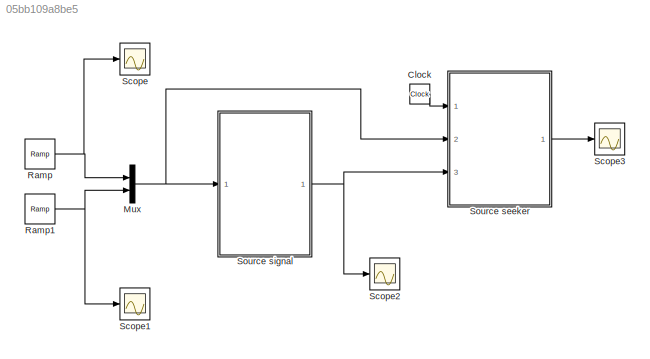
MODEL slx_05bb109a8be5
KIND model
CONFIG AbsTol = auto
CONFIG EnableMultiTasking = off
CONFIG FixedStep = auto
CONFIG MaxStep = auto
CONFIG MinStep = auto
CONFIG RelTol = 1e-3
CONFIG SampleTimeConstraint = Unconstrained
CONFIG Solver = VariableStepAuto
CONFIG SolverName = VariableStepAuto
CONFIG StartTime = 0.0
CONFIG StopTime = 10
BLOCK [Clock] Clock
BLOCK [Mux] Mux
  DisplayOption = bar
  Inputs = 2
  Ports = [2, 1]
BLOCK [Reference] Ramp  REF=simulink/Sources/Ramp
  Ports = [0, 1]
  SourceBlock = simulink/Sources/Ramp
  SourceProductBaseCode = SL
  SourceProductName = Simulink
  SourceType = Ramp
BLOCK [Reference] Ramp1  REF=simulink/Sources/Ramp
  Ports = [0, 1]
  SourceBlock = simulink/Sources/Ramp
  SourceProductBaseCode = SL
  SourceProductName = Simulink
  SourceType = Ramp
BLOCK [Scope] Scope
  NumInputPorts = 1
  Ports = [1]
  ScopeSpecificationString = Simulink.scopes.TimeScopeBlockCfg('CurrentConfiguration', extmgr.ConfigurationSet(extmgr.Configuration('Core','General UI',true),extmgr.Configuration('Core','Source UI',true),extmgr.Configuration('Sources','WiredSimulink',true,'DataLoggingVariableName','ScopeData2'),extmgr.Configuration('Visuals','Time Domain',true,'SerializedDisplays',{struct('MinYLimReal','-10.25','MaxYLimReal','2.25','YLabelRea...<+1378ch>
BLOCK [Scope] Scope1
  NumInputPorts = 1
  Ports = [1]
  ScopeSpecificationString = Simulink.scopes.TimeScopeBlockCfg('CurrentConfiguration', extmgr.ConfigurationSet(extmgr.Configuration('Core','General UI',true),extmgr.Configuration('Core','Source UI',true),extmgr.Configuration('Sources','WiredSimulink',true,'DataLoggingVariableName','ScopeData3'),extmgr.Configuration('Visuals','Time Domain',true),extmgr.Configuration('Tools','Plot Navigation',true),extmgr.Configuration('Tools',...<+40ch>
BLOCK [Scope] Scope2
  NumInputPorts = 1
  Ports = [1]
  ScopeSpecificationString = Simulink.scopes.TimeScopeBlockCfg('CurrentConfiguration', extmgr.ConfigurationSet(extmgr.Configuration('Core','General UI',true),extmgr.Configuration('Core','Source UI',true),extmgr.Configuration('Sources','WiredSimulink',true,'DataLoggingVariableName','ScopeData5'),extmgr.Configuration('Visuals','Time Domain',true,'SerializedDisplays',{struct('MinYLimReal','-20.25','MaxYLimReal','182.25','YLabelR...<+1393ch>
BLOCK [Scope] Scope3
  NumInputPorts = 1
  Ports = [1]
  ScopeSpecificationString = Simulink.scopes.TimeScopeBlockCfg('CurrentConfiguration', extmgr.ConfigurationSet(extmgr.Configuration('Core','General UI',true),extmgr.Configuration('Core','Source UI',true),extmgr.Configuration('Sources','WiredSimulink',true,'DataLoggingVariableName','ScopeData6'),extmgr.Configuration('Visuals','Time Domain',true,'SerializedDisplays',{struct('MinYLimReal','-1.42455','MaxYLimReal','3.14548','YLab...<+1421ch>
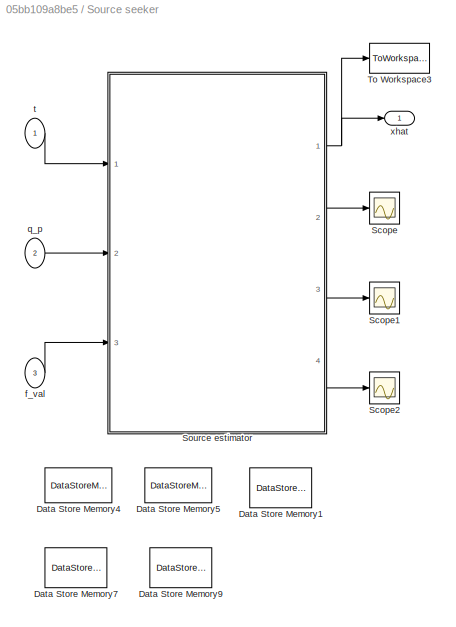
BLOCK [SubSystem] Source seeker
  Ports = [3, 1]
  RequestExecContextInheritance = off
  Variant = off
BLOCK [DataStoreMemory] Source seeker/Data Store Memory1
  DataStoreName = t_0s
  OutDataTypeStr = double
  ReadBeforeWriteMsg = warning
  ShowAdditionalParam = off
  SignalType = real
  WriteAfterReadMsg = warning
  WriteAfterWriteMsg = warning
BLOCK [DataStoreMemory] Source seeker/Data Store Memory4
  DataStoreName = xhat_interval
  Dimensions = [2, 1]
  InitialValue = xhat0
  OutDataTypeStr = double
  ReadBeforeWriteMsg = warning
  ShowAdditionalParam = off
  SignalType = real
  WriteAfterReadMsg = warning
  WriteAfterWriteMsg = warning
BLOCK [DataStoreMemory] Source seeker/Data Store Memory5
  DataStoreName = m_interval
  OutDataTypeStr = double
  ReadBeforeWriteMsg = warning
  ShowAdditionalParam = off
  SignalType = real
  WriteAfterReadMsg = warning
  WriteAfterWriteMsg = warning
BLOCK [DataStoreMemory] Source seeker/Data Store Memory7
  DataStoreName = xhat_prev
  InitialValue = xhat0
  OutDataTypeStr = double
  ReadBeforeWriteMsg = warning
  ShowAdditionalParam = off
  SignalType = real
  WriteAfterReadMsg = warning
  WriteAfterWriteMsg = warning
BLOCK [DataStoreMemory] Source seeker/Data Store Memory9
  DataStoreName = t_0c
  OutDataTypeStr = double
  ReadBeforeWriteMsg = warning
  ShowAdditionalParam = off
  SignalType = real
  WriteAfterReadMsg = warning
  WriteAfterWriteMsg = warning
BLOCK [Scope] Source seeker/Scope
  NumInputPorts = 1
  Ports = [1]
  ScopeSpecificationString = Simulink.scopes.TimeScopeBlockCfg('CurrentConfiguration', extmgr.ConfigurationSet(extmgr.Configuration('Core','General UI',true),extmgr.Configuration('Core','Source UI',true),extmgr.Configuration('Sources','WiredSimulink',true),extmgr.Configuration('Visuals','Time Domain',true,'SerializedDisplays',{struct('MinYLimReal','0.06091','MaxYLimReal','2.98042','YLabelReal','','MinYLimMag','0.06091','MaxYL...<+1416ch>
BLOCK [Scope] Source seeker/Scope1
  NumInputPorts = 1
  Ports = [1]
  ScopeSpecificationString = Simulink.scopes.TimeScopeBlockCfg('CurrentConfiguration', extmgr.ConfigurationSet(extmgr.Configuration('Core','General UI',true),extmgr.Configuration('Core','Source UI',true),extmgr.Configuration('Sources','WiredSimulink',true,'DataLoggingVariableName','ScopeData1'),extmgr.Configuration('Visuals','Time Domain',true,'SerializedDisplays',{struct('MinYLimReal','-0.25','MaxYLimReal','2.25','YLabelReal...<+1394ch>
BLOCK [Scope] Source seeker/Scope2
  NumInputPorts = 1
  Ports = [1]
  ScopeSpecificationString = Simulink.scopes.TimeScopeBlockCfg('CurrentConfiguration', extmgr.ConfigurationSet(extmgr.Configuration('Core','General UI',true),extmgr.Configuration('Core','Source UI',true),extmgr.Configuration('Sources','WiredSimulink',true,'DataLoggingVariableName','ScopeData4'),extmgr.Configuration('Visuals','Time Domain',true,'SerializedDisplays',{struct('MinYLimReal','-0.71539','MaxYLimReal','6.43849','YLab...<+1416ch>
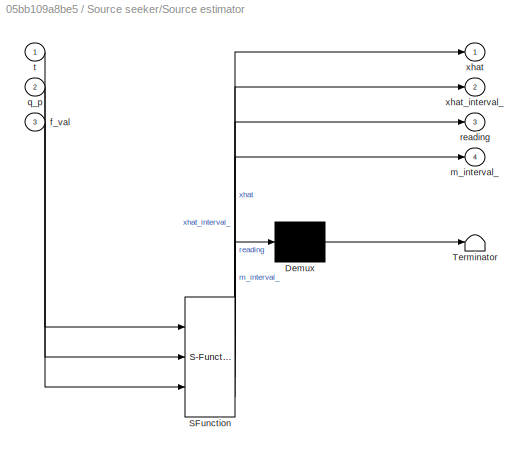
BLOCK [SubSystem] Source seeker/Source estimator
  ErrorFcn = Stateflow.Translate.translate
  PermitHierarchicalResolution = ExplicitOnly
  Ports = [3, 4]
  RequestExecContextInheritance = off
  SFBlockType = MATLAB Function
  TreatAsAtomicUnit = on
  Variant = off
BLOCK [Demux] Source seeker/Source estimator/ Demux 
  Outputs = 1
  Ports = [1, 1]
BLOCK [S-Function] Source seeker/Source estimator/ SFunction 
  EnableBusSupport = on
  FunctionName = sf_sfun
  Parameters = source_params
  PortCounts = [3 5]
  Ports = [3, 5]
  SFcnIsStateOwnerBlock = off
  SFunctionDeploymentMode = off
  Tag = Stateflow S-Function save_sourcegen 3
BLOCK [Terminator] Source seeker/Source estimator/ Terminator 
BLOCK [Inport] Source seeker/Source estimator/f_val
  IconDisplay = Port number
  Port = 3
BLOCK [Outport] Source seeker/Source estimator/m_interval_
  IconDisplay = Port number
  Port = 4
BLOCK [Inport] Source seeker/Source estimator/q_p
  IconDisplay = Port number
  Port = 2
BLOCK [Outport] Source seeker/Source estimator/reading
  IconDisplay = Port number
  Port = 3
BLOCK [Inport] Source seeker/Source estimator/t
  IconDisplay = Port number
BLOCK [Outport] Source seeker/Source estimator/xhat
  IconDisplay = Port number
BLOCK [Outport] Source seeker/Source estimator/xhat_interval_
  IconDisplay = Port number
  Port = 2
BLOCK [ToWorkspace] Source seeker/To Workspace3
  FixptAsFi = on
  MaxDataPoints = inf
  Ports = [1]
  SampleTime = -1
  Save2DSignal = 3-D array (concatenate along third dimension)
  SaveFormat = Structure With Time
  VariableName = xhat
BLOCK [Inport] Source seeker/f_val
  IconDisplay = Port number
  Port = 3
BLOCK [Inport] Source seeker/q_p
  IconDisplay = Port number
  Port = 2
BLOCK [Inport] Source seeker/t
  IconDisplay = Port number
BLOCK [Outport] Source seeker/xhat
  IconDisplay = Port number
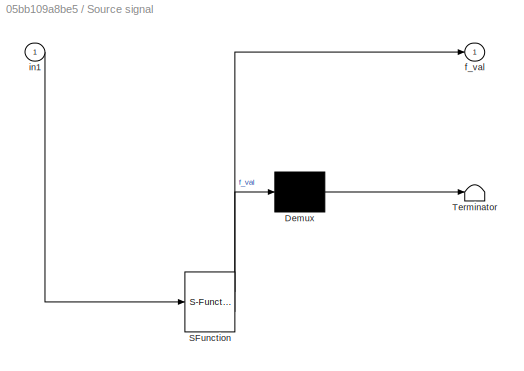
BLOCK [SubSystem] Source signal
  ErrorFcn = Stateflow.Translate.translate
  PermitHierarchicalResolution = ExplicitOnly
  Ports = [1, 1]
  RequestExecContextInheritance = off
  SFBlockType = MATLAB Function
  TreatAsAtomicUnit = on
  Variant = off
BLOCK [Demux] Source signal/ Demux 
  Outputs = 1
  Ports = [1, 1]
BLOCK [S-Function] Source signal/ SFunction 
  EnableBusSupport = on
  FunctionName = sf_sfun
  PortCounts = [1 2]
  Ports = [1, 2]
  SFcnIsStateOwnerBlock = off
  SFunctionDeploymentMode = off
  Tag = Stateflow S-Function save_sourcegen 7
BLOCK [Terminator] Source signal/ Terminator 
BLOCK [Outport] Source signal/f_val
  IconDisplay = Port number
BLOCK [Inport] Source signal/in1
  IconDisplay = Port number
LINE Clock:1 -> Source seeker:1
NET Mux:1 -> Source seeker:2, Source signal:1
NET Ramp1:1 -> Mux:2, Scope1:1
NET Ramp:1 -> Mux:1, Scope:1
NET Source seeker/Source estimator:1 -> Source seeker/To Workspace3:1, Source seeker/xhat:1
LINE Source seeker/Source estimator:2 -> Source seeker/Scope:1
LINE Source seeker/Source estimator:3 -> Source seeker/Scope1:1
LINE Source seeker/Source estimator:4 -> Source seeker/Scope2:1
LINE Source seeker/f_val:1 -> Source seeker/Source estimator:3
LINE Source seeker/q_p:1 -> Source seeker/Source estimator:2
LINE Source seeker/t:1 -> Source seeker/Source estimator:1
LINE Source seeker:1 -> Scope3:1
NET Source signal:1 -> Scope2:1, Source seeker:3
note: NET lines group one-source signal fan-out (src -> all destinations, sorted); 1:1 wires keep LINE
CHART Source seeker/Source estimator states=1 transitions=1
  STATE_LABEL 'eML_blk_kernel()'
  STATE_LABEL 'SCRIPT:\nfunction [xhat, xhat_interval_, reading, m_interval_] = ...\n            source_estimation(t, q_p, f_val, source_params)\n    \n    global t_0c t_0s xhat_prev m_interval xhat_interval;\n    \n    % Source seeking parameters\n    nu = source_params.nu;\n    lambda = source_params.lambda;\n    T_cur = source_params.T_cur;\n    T_sample = source_params.T_sample;\n    devval = source_params.devval;\n    ...<+722ch>'
CHART Source signal states=1 transitions=1
  STATE_LABEL 'eML_blk_kernel()'
  STATE_LABEL 'SCRIPT:\nfunction f_val = source_signal(in1)\n\n%    This function was generated by the Symbolic Math Toolbox version 7.2.\n\n%    16-Feb-2021 18:42:54\n\n\n\nx = in1(1,:);\n\ny = in1(2,:);\n\nf_val = x.^2+y.^2;\n\nend'
